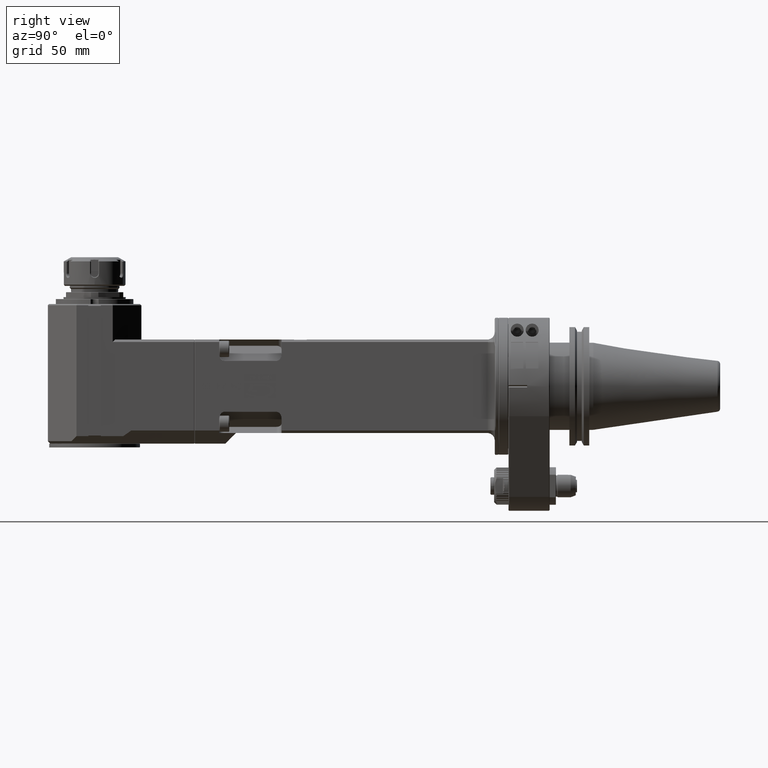
[diagram: clean part render]
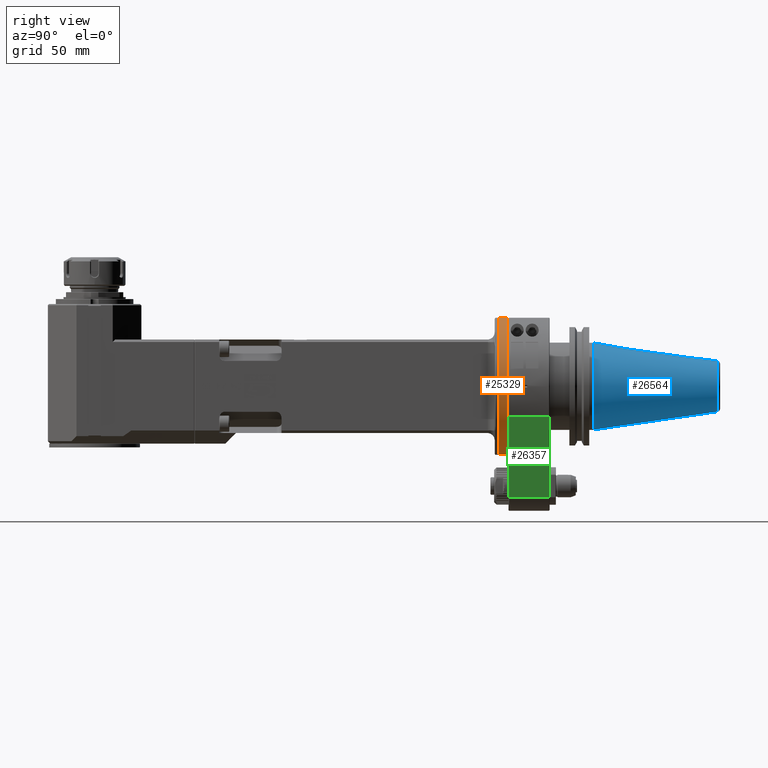
[diagram: same view with three faces highlighted in distinct colors, each labeled with its STEP entity id]
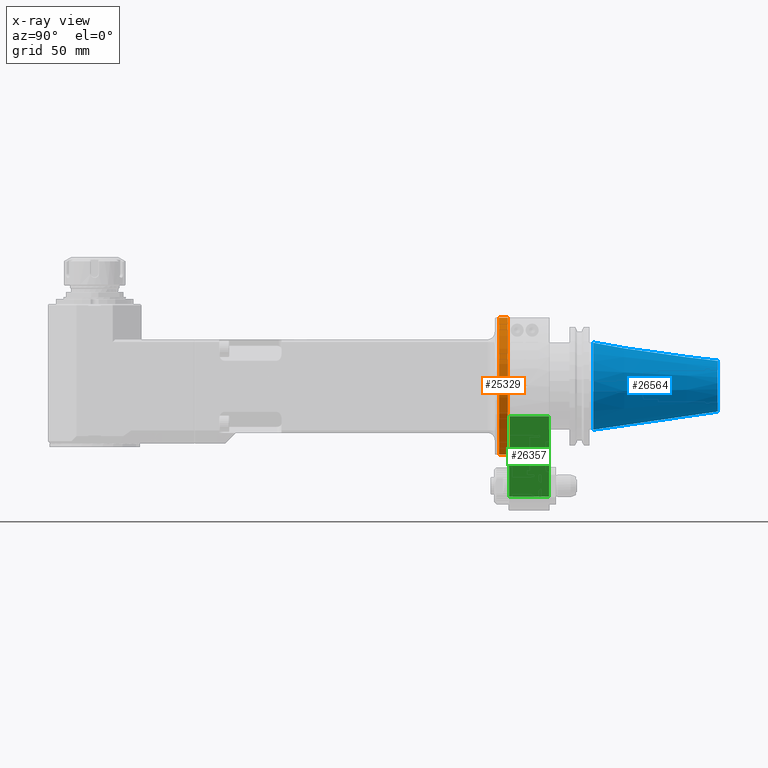
[diagram: x-ray of the same camera — body ghosted, the three highlighted faces saturated]
A machine part, right view with three faces highlighted in distinct colors.
The next image is the same camera in x-ray (body ghosted, the three faces saturated) — at least one of them is partly hidden behind the body in this view.
Their STEP definitions:

[orange] entity #25329 — the highlighted cylindrical surface (bore or boss wall) has radius 55 mm, axis along (-0, 1, 0).
#864=B_SPLINE_CURVE_WITH_KNOTS('',3,(#40361,#40362,#40363,#40364,#40365,
#40366,#40367,#40368,#40369,#40370,#40371,#40372,#40373,#40374,#40375,#40376,
#40377,#40378,#40379,#40380,#40381,#40382),.UNSPECIFIED.,.F.,.F.,(4,2,2,
2,2,2,2,2,2,2,4),(4.76471715650682E-5,0.0575495201717146,0.132747012582082,
0.200670397972454,0.329421660951021,0.449239608103092,0.568898415474542,
0.690618546417329,0.751157152664828,0.81855536306621,0.870179635431588),
 .UNSPECIFIED.);
#865=B_SPLINE_CURVE_WITH_KNOTS('',3,(#40384,#40385,#40386,#40387,#40388,
#40389,#40390,#40391,#40392,#40393,#40394,#40395,#40396,#40397,#40398,#40399,
#40400,#40401,#40402,#40403,#40404,#40405),.UNSPECIFIED.,.F.,.F.,(4,2,2,
2,2,2,2,2,2,2,4),(3.95623181660155E-5,0.0393003026058012,0.0797638895583738,
0.179546209852878,0.343477320886014,0.506101937803756,0.668643096008396,
0.832623021348612,0.958288517178194,1.01388721531743,1.06788993555784),
 .UNSPECIFIED.);
#1851=LINE('',#40359,#3936);
#1852=LINE('',#40383,#3937);
#3936=VECTOR('',#30523,55.);
#3937=VECTOR('',#30524,55.);
#5683=CYLINDRICAL_SURFACE('',#27181,55.);
#6272=FACE_OUTER_BOUND('',#7819,.T.);
#7819=EDGE_LOOP('',(#17909,#17910,#17911,#17912,#17913,#17914,#17915,#17916,
#17917,#17918));
#9376=CIRCLE('',#27179,55.);
#9377=CIRCLE('',#27180,55.);
#9378=CIRCLE('',#27182,55.);
#9379=CIRCLE('',#27183,55.);
#10740=VERTEX_POINT('',#40348);
#10741=VERTEX_POINT('',#40349);
#10742=VERTEX_POINT('',#40354);
#10743=VERTEX_POINT('',#40355);
#10744=VERTEX_POINT('',#40358);
#10745=VERTEX_POINT('',#40360);
#13506=EDGE_CURVE('',#10740,#10741,#9376,.T.);
#13507=EDGE_CURVE('',#10741,#10740,#9377,.T.);
#13509=EDGE_CURVE('',#10742,#10743,#9378,.T.);
#13510=EDGE_CURVE('',#10743,#10742,#9379,.T.);
#13511=EDGE_CURVE('',#10743,#10744,#1851,.T.);
#13512=EDGE_CURVE('',#10744,#10745,#864,.T.);
#13513=EDGE_CURVE('',#10745,#10740,#1852,.T.);
#13514=EDGE_CURVE('',#10745,#10744,#865,.T.);
#17909=ORIENTED_EDGE('',*,*,#13509,.F.);
#17910=ORIENTED_EDGE('',*,*,#13510,.F.);
#17911=ORIENTED_EDGE('',*,*,#13511,.T.);
#17912=ORIENTED_EDGE('',*,*,#13512,.T.);
#17913=ORIENTED_EDGE('',*,*,#13513,.T.);
#17914=ORIENTED_EDGE('',*,*,#13506,.T.);
#17915=ORIENTED_EDGE('',*,*,#13507,.T.);
#17916=ORIENTED_EDGE('',*,*,#13513,.F.);
#17917=ORIENTED_EDGE('',*,*,#13514,.T.);
#17918=ORIENTED_EDGE('',*,*,#13511,.F.);
#25329=ADVANCED_FACE('',(#6272),#5683,.T.);
#27179=AXIS2_PLACEMENT_3D('',#40350,#30512,#30513);
#27180=AXIS2_PLACEMENT_3D('',#40351,#30514,#30515);
#27181=AXIS2_PLACEMENT_3D('',#40353,#30517,#30518);
#27182=AXIS2_PLACEMENT_3D('',#40356,#30519,#30520);
#27183=AXIS2_PLACEMENT_3D('',#40357,#30521,#30522);
#30512=DIRECTION('center_axis',(0.,1.,0.));
#30513=DIRECTION('ref_axis',(-1.,0.,0.));
#30514=DIRECTION('center_axis',(0.,1.,0.));
#30515=DIRECTION('ref_axis',(-1.,0.,0.));
#30517=DIRECTION('center_axis',(0.,1.,0.));
#30518=DIRECTION('ref_axis',(1.,0.,0.));
#30519=DIRECTION('center_axis',(0.,1.,0.));
#30520=DIRECTION('ref_axis',(1.,0.,0.));
#30521=DIRECTION('center_axis',(0.,1.,0.));
#30522=DIRECTION('ref_axis',(1.,0.,0.));
#30523=DIRECTION('',(0.,-1.,0.));
#30524=DIRECTION('',(0.,-1.,0.));
#40348=CARTESIAN_POINT('',(-55.,-7.499994945197,0.));
#40349=CARTESIAN_POINT('',(-7.65860274533289E-13,-7.49999494519918,55.0000000000028));
#40350=CARTESIAN_POINT('Origin',(0.,-7.499994945197,0.));
#40351=CARTESIAN_POINT('Origin',(0.,-7.499994945197,0.));
#40353=CARTESIAN_POINT('Origin',(0.,-8.395,0.));
#40354=CARTESIAN_POINT('',(-3.8377871362941E-13,-0.600006121446037,55.));
#40355=CARTESIAN_POINT('',(-55.,-0.600006121445001,6.73555739531044E-15));
#40356=CARTESIAN_POINT('Origin',(0.,-0.600006121445,0.));
#40357=CARTESIAN_POINT('Origin',(0.,-0.600006121445,0.));
#40358=CARTESIAN_POINT('',(-55.,-2.14967679933385,-6.95333184218648E-7));
#40359=CARTESIAN_POINT('',(-55.,-8.395,6.73555739531044E-15));
#40360=CARTESIAN_POINT('',(-54.9998972986273,-6.05039023038972,3.31134135429935E-7));
#40361=CARTESIAN_POINT('Ctrl Pts',(-55.,-2.15043295591499,-2.20427715030488E-7));
#40362=CARTESIAN_POINT('Ctrl Pts',(-55.0000000007682,-2.15033177080402,
0.191669915930976));
#40363=CARTESIAN_POINT('Ctrl Pts',(-54.998982183589,-2.17750009876705,0.381698172750492));
#40364=CARTESIAN_POINT('Ctrl Pts',(-54.994625191424,-2.30446481610494,0.805538719922634));
#40365=CARTESIAN_POINT('Ctrl Pts',(-54.9912983291755,-2.40879092740047,
0.985156582684189));
#40366=CARTESIAN_POINT('Ctrl Pts',(-54.986883755185,-2.55735827421071,1.20564031468998));
#40367=CARTESIAN_POINT('Ctrl Pts',(-54.9846298039082,-2.63754215578491,
1.30328037770137));
#40368=CARTESIAN_POINT('Ctrl Pts',(-54.9780481676223,-2.89845061269778,
1.56306099354884));
#40369=CARTESIAN_POINT('Ctrl Pts',(-54.9734503366162,-3.11123494168173,
1.71185358989585));
#40370=CARTESIAN_POINT('Ctrl Pts',(-54.9668642322466,-3.59691730519825,
1.91130579622192));
#40371=CARTESIAN_POINT('Ctrl Pts',(-54.9650468361352,-3.84661919659184,
1.96051685352648));
#40372=CARTESIAN_POINT('Ctrl Pts',(-54.9650341909436,-4.35030599588528,
1.96087134198238));
#40373=CARTESIAN_POINT('Ctrl Pts',(-54.9668340850872,-4.59976794218603,
1.91214405555804));
#40374=CARTESIAN_POINT('Ctrl Pts',(-54.9732052350787,-5.07178568556125,
1.71935109024444));
#40375=CARTESIAN_POINT('Ctrl Pts',(-54.9777051243508,-5.28756760341145,
1.57620375960628));
#40376=CARTESIAN_POINT('Ctrl Pts',(-54.9845546959644,-5.55967232273253,
1.30643755872568));
#40377=CARTESIAN_POINT('Ctrl Pts',(-54.986815070664,-5.64024579100598,1.20876622502135));
#40378=CARTESIAN_POINT('Ctrl Pts',(-54.9912540894889,-5.78988205137021,
0.987695556796586));
#40379=CARTESIAN_POINT('Ctrl Pts',(-54.9945843872942,-5.89424932953005,
0.808424073971605));
#40380=CARTESIAN_POINT('Ctrl Pts',(-54.9989704911713,-6.0220457194061,0.383655858467229));
#40381=CARTESIAN_POINT('Ctrl Pts',(-55.0000000035121,-6.04982188134921,
0.192300744327821));
#40382=CARTESIAN_POINT('Ctrl Pts',(-55.,-6.04979649265365,-1.00449260607288E-6));
#40383=CARTESIAN_POINT('',(-55.,-8.395,6.73555739531044E-15));
#40384=CARTESIAN_POINT('Ctrl Pts',(-55.,-6.05074996222938,-1.41378935680087E-6));
#40385=CARTESIAN_POINT('Ctrl Pts',(-54.9999999966359,-6.05065678949149,
-0.130871369254768));
#40386=CARTESIAN_POINT('Ctrl Pts',(-54.9995249148247,-6.03699916598477,
-0.262155299146508));
#40387=CARTESIAN_POINT('Ctrl Pts',(-54.9976749727695,-5.98389664429273,
-0.522721980869671));
#40388=CARTESIAN_POINT('Ctrl Pts',(-54.9962694453163,-5.94353590152498,
-0.652500241076953));
#40389=CARTESIAN_POINT('Ctrl Pts',(-54.9901941550887,-5.75942601262249,
-1.08270609700884));
#40390=CARTESIAN_POINT('Ctrl Pts',(-54.9851372458863,-5.58235002108501,
-1.28323120316228));
#40391=CARTESIAN_POINT('Ctrl Pts',(-54.9778059274902,-5.29212019907153,
-1.57265542096482));
#40392=CARTESIAN_POINT('Ctrl Pts',(-54.97330306417,-5.07701828127588,-1.71624522100271));
#40393=CARTESIAN_POINT('Ctrl Pts',(-54.9668837169478,-4.60556155759187,
-1.91078264480855));
#40394=CARTESIAN_POINT('Ctrl Pts',(-54.9650402752197,-4.35415433000889,
-1.96070077916902));
#40395=CARTESIAN_POINT('Ctrl Pts',(-54.9650434243085,-3.84524366954328,
-1.96061249762334));
#40396=CARTESIAN_POINT('Ctrl Pts',(-54.9668877901916,-3.59426480778179,
-1.91065847058262));
#40397=CARTESIAN_POINT('Ctrl Pts',(-54.9733006569341,-3.12312898094835,
-1.7163189134888));
#40398=CARTESIAN_POINT('Ctrl Pts',(-54.9778021909329,-2.90793586564603,
-1.57284059538695));
#40399=CARTESIAN_POINT('Ctrl Pts',(-54.9858716415635,-2.58866110478474,
-1.25420997096502));
#40400=CARTESIAN_POINT('Ctrl Pts',(-54.9906573721412,-2.42639828039594,
-1.05141813725737));
#40401=CARTESIAN_POINT('Ctrl Pts',(-54.9963102800069,-2.25532500537357,
-0.648922263421474));
#40402=CARTESIAN_POINT('Ctrl Pts',(-54.9977000595956,-2.21541645983678,
-0.519866940915483));
#40403=CARTESIAN_POINT('Ctrl Pts',(-54.9995298634487,-2.16283504564537,
-0.260788866840543));
#40404=CARTESIAN_POINT('Ctrl Pts',(-54.9999999976026,-2.14926553454394,
-0.130172442897446));
#40405=CARTESIAN_POINT('Ctrl Pts',(-55.,-2.14917110805236,-1.01293348195308E-6));

[blue] entity #26564 — the highlighted conical surface has half-angle 8.3 deg.
#1423=CONICAL_SURFACE('',#29052,27.65552420652,0.144862327915529);
#3499=LINE('',#54483,#5584);
#5584=VECTOR('',#35911,27.65552420652);
#7507=FACE_OUTER_BOUND('',#9151,.T.);
#9151=EDGE_LOOP('',(#24172,#24173,#24174,#24175,#24176));
#10083=CIRCLE('',#29049,20.38604841304);
#10085=CIRCLE('',#29051,20.38604841304);
#10086=CIRCLE('',#29053,34.925);
#12617=VERTEX_POINT('',#54475);
#12618=VERTEX_POINT('',#54476);
#12619=VERTEX_POINT('',#54481);
#16480=EDGE_CURVE('',#12617,#12618,#10083,.T.);
#16482=EDGE_CURVE('',#12618,#12617,#10085,.T.);
#16483=EDGE_CURVE('',#12619,#12619,#10086,.T.);
#16484=EDGE_CURVE('',#12619,#12618,#3499,.T.);
#24172=ORIENTED_EDGE('',*,*,#16483,.F.);
#24173=ORIENTED_EDGE('',*,*,#16484,.T.);
#24174=ORIENTED_EDGE('',*,*,#16482,.T.);
#24175=ORIENTED_EDGE('',*,*,#16480,.T.);
#24176=ORIENTED_EDGE('',*,*,#16484,.F.);
#26564=ADVANCED_FACE('',(#7507),#1423,.T.);
#29049=AXIS2_PLACEMENT_3D('',#54477,#35901,#35902);
#29051=AXIS2_PLACEMENT_3D('',#54479,#35905,#35906);
#29052=AXIS2_PLACEMENT_3D('',#54480,#35907,#35908);
#29053=AXIS2_PLACEMENT_3D('',#54482,#35909,#35910);
#35901=DIRECTION('center_axis',(0.,-1.,0.));
#35902=DIRECTION('ref_axis',(0.00108059556212205,0.,0.999999416156445));
#35905=DIRECTION('center_axis',(0.,-1.,0.));
#35906=DIRECTION('ref_axis',(0.00108059556212205,0.,0.999999416156445));
#35907=DIRECTION('center_axis',(0.,-1.,0.));
#35908=DIRECTION('ref_axis',(0.,0.,1.));
#35909=DIRECTION('center_axis',(0.,-1.,0.));
#35910=DIRECTION('ref_axis',(0.,0.,-1.));
#35911=DIRECTION('',(-1.76785359492914E-17,0.989525789068969,0.144356201000973));
#54475=CARTESIAN_POINT('',(0.0220290734443338,167.6608905025,20.386036510777));
#54476=CARTESIAN_POINT('',(2.49657089362968E-15,167.660890502501,-20.3860484130436));
#54477=CARTESIAN_POINT('Origin',(0.,167.6608905025,-1.480248809205E-14));
#54479=CARTESIAN_POINT('Origin',(0.,167.6608905025,-1.480248809205E-14));
#54480=CARTESIAN_POINT('Origin',(0.,117.83044525125,-1.480248809205E-14));
#54481=CARTESIAN_POINT('',(0.,68.,-34.925));
#54482=CARTESIAN_POINT('Origin',(0.,68.,-1.480248809205E-14));
#54483=CARTESIAN_POINT('',(3.38682491982569E-15,117.83044525125,-27.65552420652));

[green] entity #26357 — the highlighted planar face has unit normal (0.8992, 0, -0.4375).
#3048=LINE('',#52151,#5133);
#3260=LINE('',#53782,#5345);
#3261=LINE('',#53785,#5346);
#3262=LINE('',#53786,#5347);
#5133=VECTOR('',#34320,10.);
#5345=VECTOR('',#35152,31.9997524776297);
#5346=VECTOR('',#35155,10.);
#5347=VECTOR('',#35156,31.9997413815);
#7300=FACE_OUTER_BOUND('',#8933,.T.);
#8933=EDGE_LOOP('',(#23271,#23272,#23273,#23274));
#12248=VERTEX_POINT('',#52146);
#12249=VERTEX_POINT('',#52150);
#12513=VERTEX_POINT('',#53778);
#12514=VERTEX_POINT('',#53784);
#15762=EDGE_CURVE('',#12249,#12248,#3048,.T.);
#16186=EDGE_CURVE('',#12248,#12513,#3260,.T.);
#16187=EDGE_CURVE('',#12513,#12514,#3261,.T.);
#16188=EDGE_CURVE('',#12514,#12249,#3262,.T.);
#23271=ORIENTED_EDGE('',*,*,#16187,.T.);
#23272=ORIENTED_EDGE('',*,*,#16188,.T.);
#23273=ORIENTED_EDGE('',*,*,#15762,.T.);
#23274=ORIENTED_EDGE('',*,*,#16186,.T.);
#24943=PLANE('',#28794);
#26357=ADVANCED_FACE('',(#7300),#24943,.T.);
#28794=AXIS2_PLACEMENT_3D('',#53783,#35153,#35154);
#34320=DIRECTION('',(-0.437500000000014,-3.75252097625435E-14,-0.899218410621128));
#35152=DIRECTION('',(-3.82438699266904E-7,0.99999999999991,1.86079929291902E-7));
#35153=DIRECTION('center_axis',(0.899218410621128,0.,-0.437500000000014));
#35154=DIRECTION('ref_axis',(-0.437500000000014,0.,-0.899218410621128));
#35155=DIRECTION('',(0.437500000000014,-3.75252097625435E-14,0.899218410621128));
#35156=DIRECTION('',(7.424987347099E-11,-1.,1.503411777327E-10));
#52146=CARTESIAN_POINT('',(17.9843682449328,0.500170512042425,-88.7499999331764));
#52150=CARTESIAN_POINT('',(49.4570126806822,0.500103484141412,-24.0625000925985));
#52151=CARTESIAN_POINT('',(41.5888514912253,0.499999999995519,-40.2343749999989));
#53778=CARTESIAN_POINT('',(17.9843685923995,32.4998283294068,-88.7500001053328));
#53782=CARTESIAN_POINT('',(17.98435748801,0.5001435280147,-88.74999469957));
#53783=CARTESIAN_POINT('Origin',(49.45701258416,0.,-24.0625));
#53784=CARTESIAN_POINT('',(49.4570126926282,32.4998623897335,-24.0625001043884));
#53785=CARTESIAN_POINT('',(41.5888514912256,32.5000000000045,-40.2343749999983));
#53786=CARTESIAN_POINT('',(49.45701256376,32.49985311079,-24.06250004169));